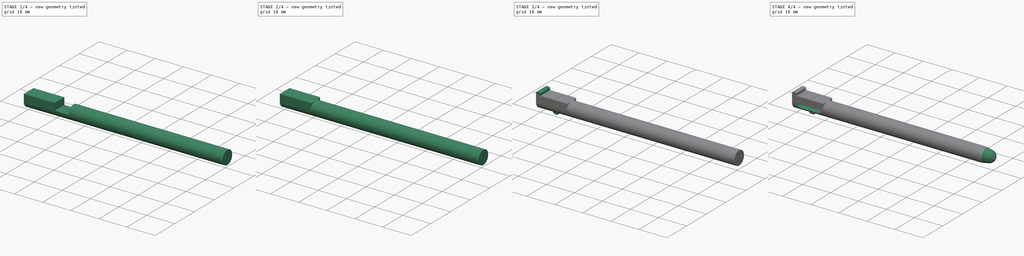
[diagram: build sequence overview — one tinted view per stage of 4, left to right]
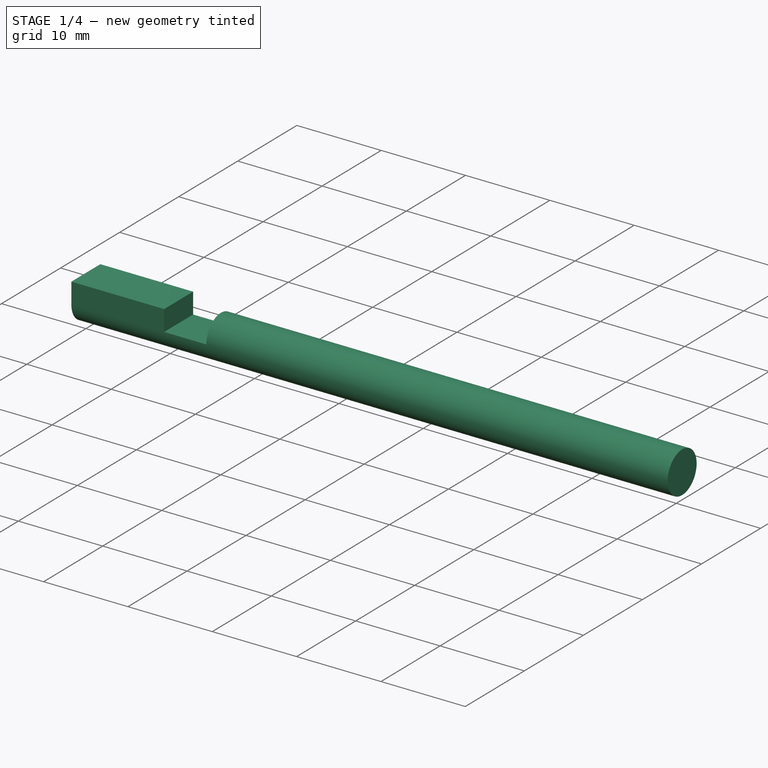
[diagram: stage 1 of 4 — iso view after this stage's code; geometry added in this stage tinted green]
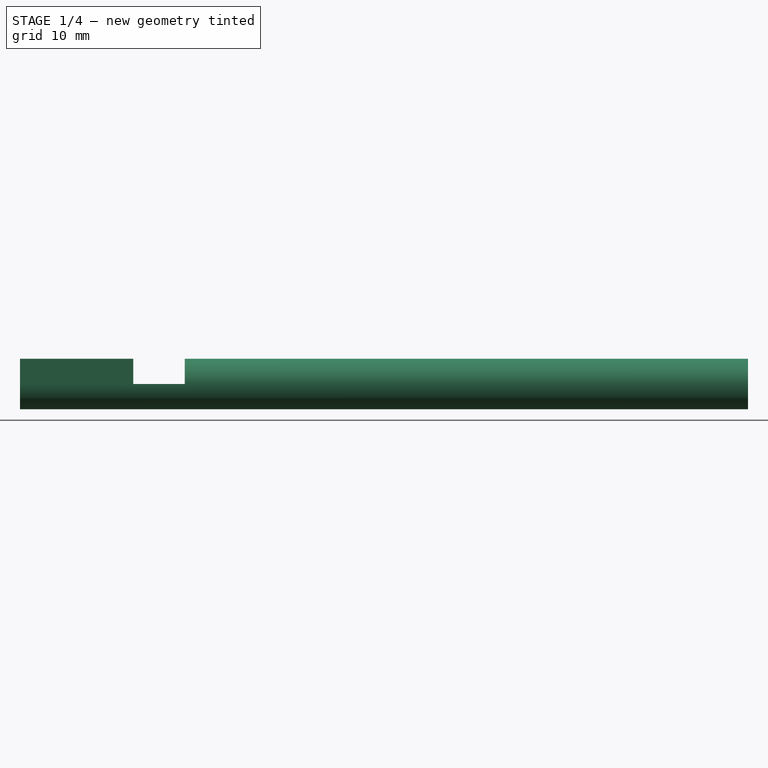
[diagram: stage 1 of 4 — front view after this stage's code; geometry added in this stage tinted green]
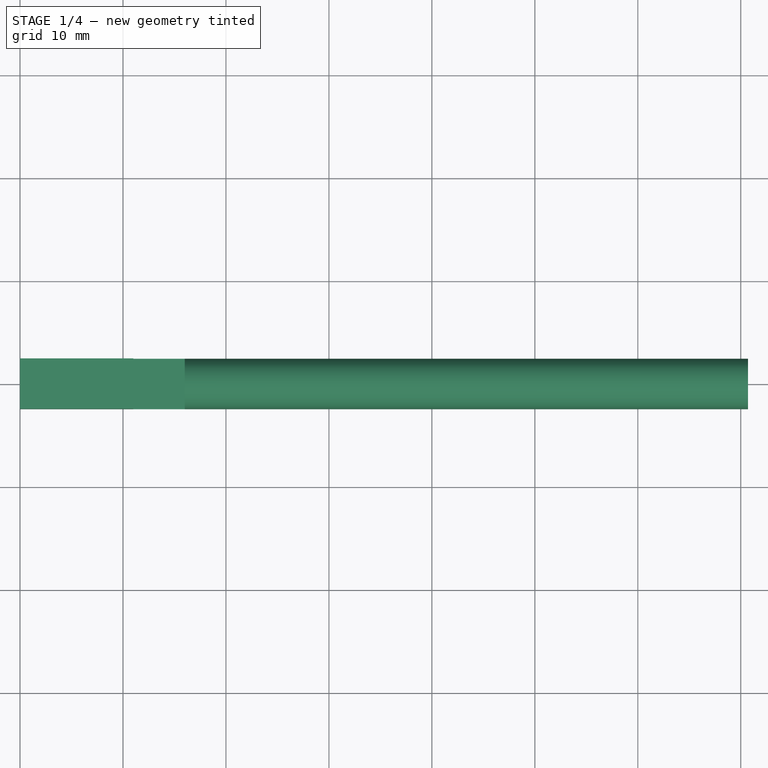
[diagram: stage 1 of 4 — top view after this stage's code; geometry added in this stage tinted green]
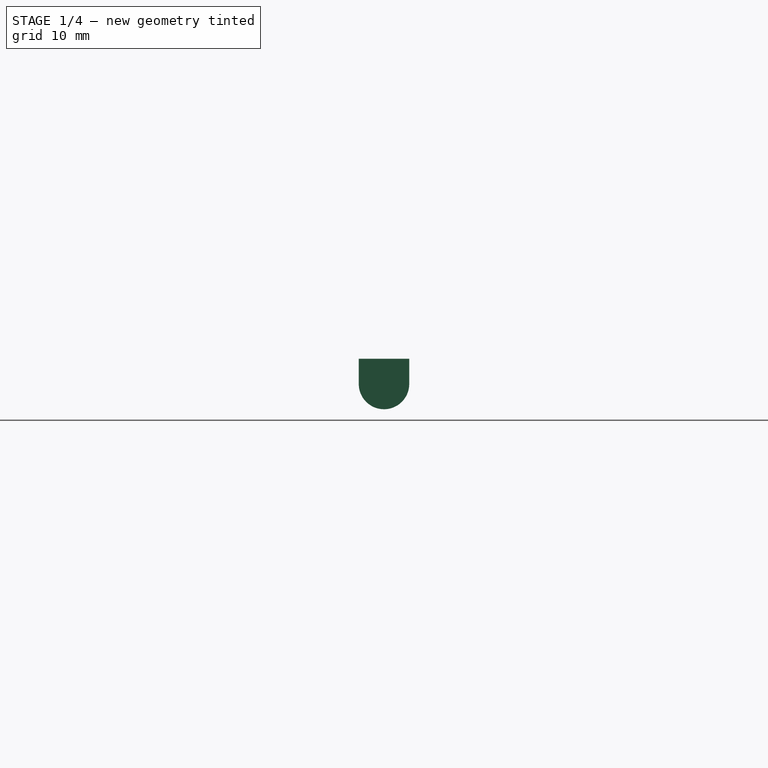
[diagram: stage 1 of 4 — right view after this stage's code; geometry added in this stage tinted green]
FCSTD DOCUMENT  (FreeCAD 1.0R39109 (Git))
Label: 3DS Stylus
License: Creative Commons Attribution-NonCommercial-ShareAlike
LicenseURL: http://creativecommons.org/licenses/by-nc-sa/4.0/
objects: Sketcher::SketchObject×11, PartDesign::Pad×5, PartDesign::Pocket×5, PartDesign::Groove×1, PartDesign::Body×1
note: 56 computed .brp shape members not serialized (recipe doc carries the construction recipe); baked Part::Feature solids carry a one-line shape summary decoded from their .brp

FEATURE [Sketcher::SketchObject] Sketch009
  ArcFitTolerance = 0
  AttachmentSupport = -> [YZ_Plane001]
  FullyConstrained = true
  MakeInternals = false
  MapMode = 5
  Placement = pos=(0,0,0) rot=(0.57735,0.57735,0.57735;2.0944rad)
  sketch-geometry (1):
    g0: Circle CenterX=0 CenterY=0 CenterZ=0 NormalX=0 NormalY=0 NormalZ=1 AngleXU=0 Radius=2.45
  constraints (2):
    c: Coincident(g0,g-1)
    c: Diameter(g0) = 4.9
FEATURE [PartDesign::Pad] Pad005
  Direction = (1,0,0)
  Length = 70.7
  Length2 = 10
  Placement = pos=(0,0,0) rot=(0.57735,0.57735,0.57735;2.0944rad)
  Profile = -> Sketch009
  ReferenceAxis = -> Sketch009 [N_Axis]
  Suppressed = false
  Type = 0
FEATURE [Sketcher::SketchObject] Sketch010
  ArcFitTolerance = 0
  AttachmentSupport = -> [XY_Plane001]
  ExternalGeometry = -> [Pad005]
  FullyConstrained = true
  MakeInternals = false
  MapMode = 5
  sketch-geometry (4):
    g0: LineSegment StartX=11 StartY=-2.45 StartZ=0 EndX=0 EndY=-2.45 EndZ=0
    g1: LineSegment StartX=0 StartY=-2.45 StartZ=0 EndX=6e-16 EndY=2.45 EndZ=0
    g2: LineSegment StartX=6e-16 StartY=2.45 StartZ=0 EndX=11 EndY=2.45 EndZ=0
    g3: LineSegment StartX=11 StartY=2.45 StartZ=0 EndX=11 EndY=-2.45 EndZ=0
  constraints (10):
    c: Coincident(g0,g1)
    c: Horizontal(g0)
    c: Coincident(g0,g-3)
    c: Horizontal(g2)
    c: Coincident(g3,g2)
    c: Vertical(g3)
    c: Distance(g2) = 11
    c: Coincident(g3,g0)
    c: Coincident(g1,g2)
    c: Coincident(g1,g-3)
FEATURE [PartDesign::Pad] Pad006
  BaseFeature = -> Pad005
  Direction = (0,0,1)
  Length = 2.45
  Length2 = 10
  Placement = pos=(0,0,0) rot=(0.57735,0.57735,0.57735;2.0944rad)
  Profile = -> Sketch010
  ReferenceAxis = -> Sketch010 [N_Axis]
  Refine = true
  Suppressed = false
  Type = 0
FEATURE [Sketcher::SketchObject] Sketch011
  ArcFitTolerance = 1e-06
  AttachmentSupport = -> [Pad006]
  ExternalGeometry = -> [Pad006]
  FullyConstrained = true
  MakeInternals = false
  MapMode = 5
  Placement = pos=(-5e-16,-2.45,3e-16) rot=(0.57735,0.57735,-0.57735;2.0944rad)
  sketch-geometry (3):
    g0: LineSegment StartX=-2.45 StartY=11 StartZ=0 EndX=-2.2 EndY=11 EndZ=0
    g1: LineSegment StartX=-2.45 StartY=11 StartZ=0 EndX=-2.45 EndY=10.75 EndZ=0
    g2: ArcOfCircle CenterX=-2.2 CenterY=10.75 CenterZ=0 NormalX=0 NormalY=0 NormalZ=1 AngleXU=0 Radius=0.25 StartAngle=1.5708 EndAngle=3.14159
  constraints (7):
    c: Coincident(g0,g-3)
    c: PointOnObject(g0,g-3)
    c: Coincident(g1,g0)
    c: Vertical(g1)
    c: Tangent(g2,g0) = 1.5708
    c: Tangent(g2,g1) = -1.5708
    c: Radius(g2) = 0.25
FEATURE [Sketcher::SketchObject] Sketch012
  ArcFitTolerance = 1e-06
  AttachmentSupport = -> [Pad006]
  FullyConstrained = true
  MakeInternals = false
  MapMode = 5
  Placement = pos=(-3e-16,3e-16,2.45) rot=(0,0,-1;1.5708rad)
  sketch-geometry (8):
    g0: ArcOfCircle CenterX=-2.2 CenterY=10.75 CenterZ=0 NormalX=0 NormalY=0 NormalZ=1 AngleXU=0 Radius=0.25 StartAngle=1.5708 EndAngle=3.14159
    g1: LineSegment StartX=-2.2 StartY=11 StartZ=0 EndX=-3.45 EndY=11 EndZ=0
    g2: LineSegment StartX=-3.45 StartY=11 StartZ=0 EndX=-3.45 EndY=10.75 EndZ=0
    g3: LineSegment StartX=-3.45 StartY=10.75 StartZ=0 EndX=-2.45 EndY=10.75 EndZ=0
    g4: LineSegment StartX=2.2 StartY=11 StartZ=0 EndX=3.45 EndY=11 EndZ=0
    g5: LineSegment StartX=3.45 StartY=11 StartZ=0 EndX=3.45 EndY=10.75 EndZ=0
    g6: LineSegment StartX=3.45 StartY=10.75 StartZ=0 EndX=2.45 EndY=10.75 EndZ=0
    g7: ArcOfCircle CenterX=2.2 CenterY=10.75 CenterZ=0 NormalX=0 NormalY=0 NormalZ=1 AngleXU=0 Radius=0.25 StartAngle=1.43582e-06 EndAngle=1.5708
  constraints (21):
    c: Tangent(g0,g1) = -1.5708
    c: Coincident(g1,g2)
    c: Coincident(g2,g3)
    c: PointOnObject(g-3,g1)
    c: Horizontal(g1)
    c: Vertical(g2)
    c: Horizontal(g3)
    c: Tangent(g0,g-3) = -1.5708
    c: Horizontal(g4)
    c: Coincident(g4,g5)
    c: Vertical(g5)
    c: Coincident(g5,g6)
    c: Coincident(g6,g-4)
    c: Horizontal(g6)
    c: PointOnObject(g-4,g4)
    c: Coincident(g7,g6)
    c: Tangent(g7,g4) = 1.5708
    c: Tangent(g-4,g7)
    c: Equal(g6,g3)
    c: Distance(g3) = 1
    c: Coincident(g0,g3)
FEATURE [Sketcher::SketchObject] Sketch013
  ArcFitTolerance = 1e-06
  AttachmentSupport = -> [Pad006]
  ExternalGeometry = -> [Pad006]
  FullyConstrained = true
  MakeInternals = false
  MapMode = 5
  Placement = pos=(11,0,3.7e-15) rot=(0.57735,0.57735,0.57735;2.0944rad)
  sketch-geometry (2):
    g0: ArcOfCircle CenterX=0 CenterY=0 CenterZ=0 NormalX=0 NormalY=0 NormalZ=1 AngleXU=0 Radius=2.45 StartAngle=4.9e-15 EndAngle=3.14159
    g1: LineSegment StartX=-2.45 StartY=1.2e-14 StartZ=0 EndX=2.45 EndY=1.2e-14 EndZ=0
  constraints (6):
    c: Coincident(g0,g-1)
    c: PointOnObject(g0,g-3)
    c: Coincident(g1,g0)
    c: Coincident(g1,g0)
    c: Horizontal(g1)
    c: Perpendicular(g-3,g1)
FEATURE [PartDesign::Pocket] Pocket003
  BaseFeature = -> Pad006
  Direction = (-1,0,0)
  Length = 5
  Length2 = 5
  Placement = pos=(0,0,0) rot=(0.57735,0.57735,0.57735;2.0944rad)
  Profile = -> Sketch013
  ReferenceAxis = -> Sketch013 [N_Axis]
  Refine = true
  Reversed = true
  Suppressed = false
  Type = 0
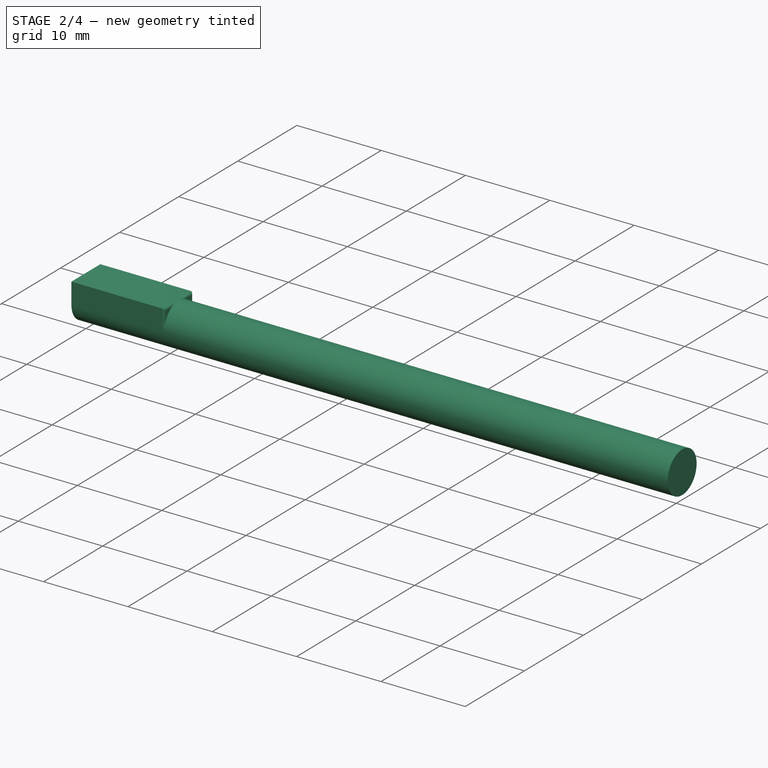
[diagram: stage 2 of 4 — iso view after this stage's code; geometry added in this stage tinted green]
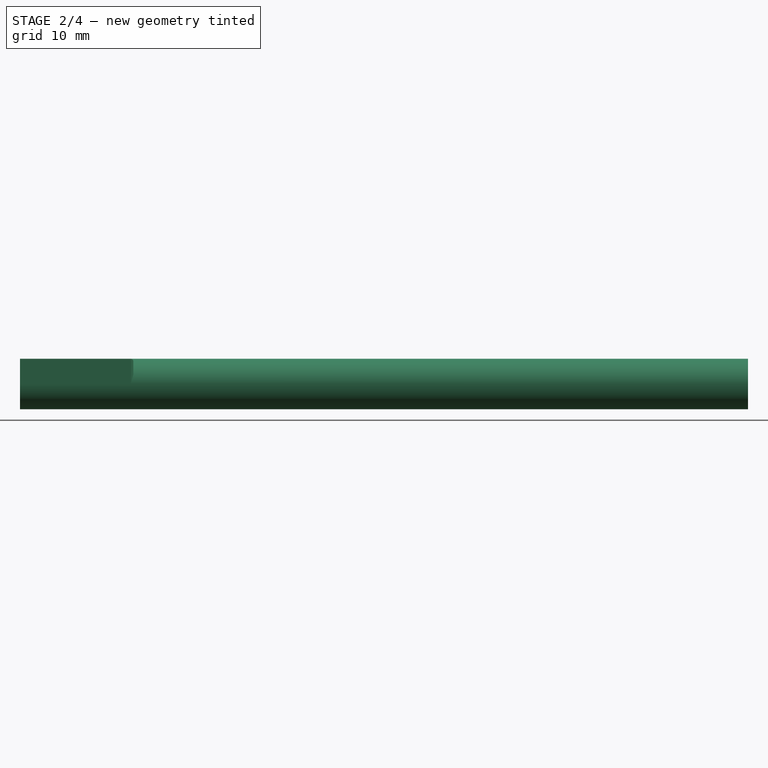
[diagram: stage 2 of 4 — front view after this stage's code; geometry added in this stage tinted green]
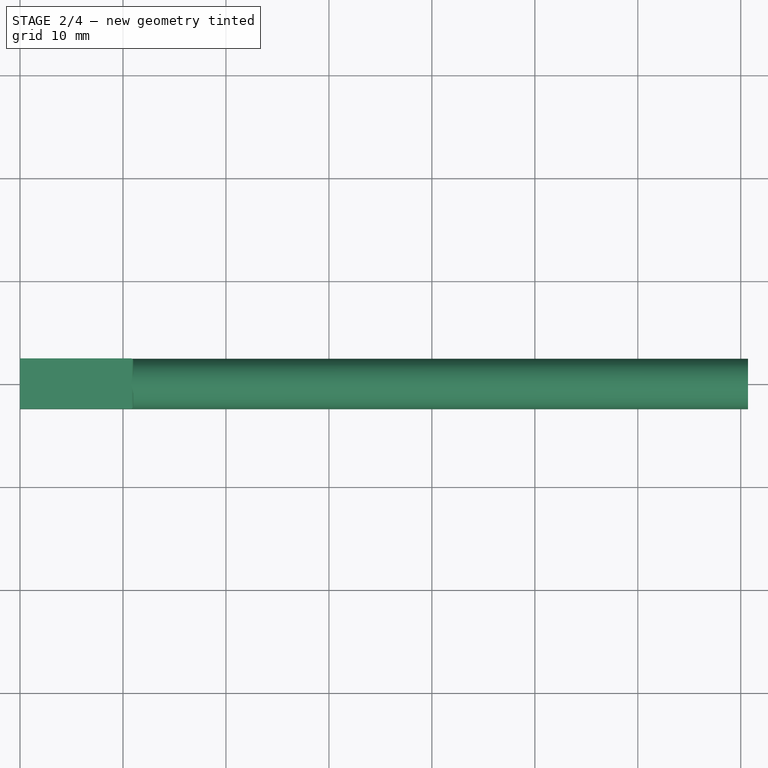
[diagram: stage 2 of 4 — top view after this stage's code; geometry added in this stage tinted green]
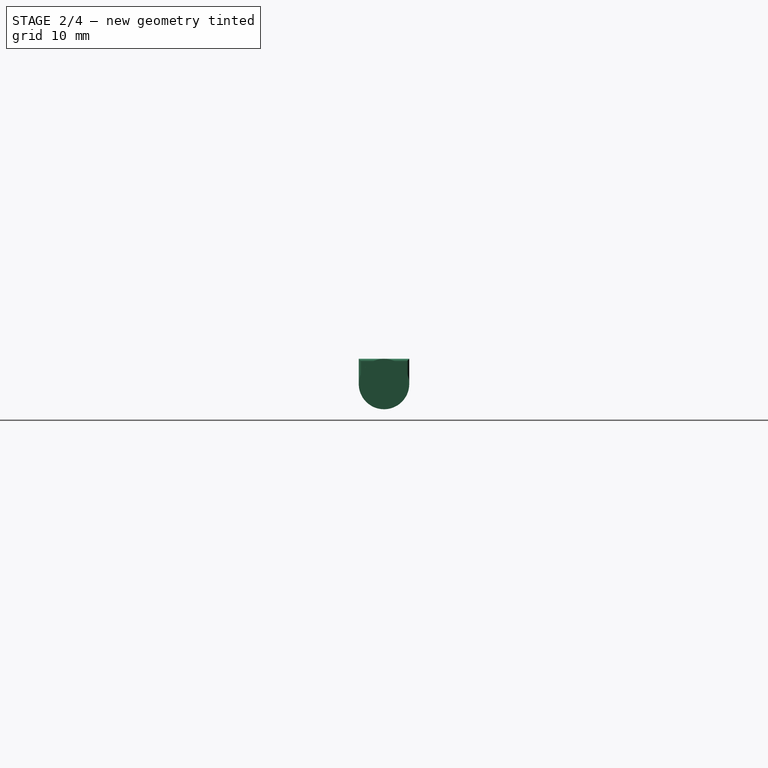
[diagram: stage 2 of 4 — right view after this stage's code; geometry added in this stage tinted green]
FEATURE [PartDesign::Pocket] Pocket
  BaseFeature = -> Pocket003
  Direction = (0,0,-1)
  Length = 0
  Length2 = 5
  Placement = pos=(0,0,0) rot=(0.57735,0.57735,0.57735;2.0944rad)
  Profile = -> Sketch012
  ReferenceAxis = -> Sketch012 [N_Axis]
  Refine = true
  Suppressed = false
  Type = 3
  UpToFace = -> Pocket003 [Face6]
FEATURE [PartDesign::Pocket] Pocket004
  BaseFeature = -> Pocket
  Direction = (0,1,0)
  Length = 5
  Length2 = 5
  Placement = pos=(0,0,0) rot=(0.57735,0.57735,0.57735;2.0944rad)
  Profile = -> Sketch011
  ReferenceAxis = -> Sketch011 [N_Axis]
  Refine = true
  Suppressed = false
  Type = 1
FEATURE [Sketcher::SketchObject] Sketch
  ArcFitTolerance = 1e-06
  AttachmentSupport = -> [Pocket004]
  ExternalGeometry = -> [Pocket004]
  FullyConstrained = true
  MakeInternals = false
  MapMode = 5
  Placement = pos=(16,-1.07e-14,5.3e-15) rot=(0.57735,0.57735,-0.57735;4.18879rad)
  sketch-geometry (1):
    g0: Circle CenterX=0 CenterY=0 CenterZ=0 NormalX=0 NormalY=0 NormalZ=1 AngleXU=0 Radius=2.45
  constraints (2):
    c: Coincident(g0,g-1)
    c: Equal(g0,g-3)
FEATURE [PartDesign::Pad] Pad
  BaseFeature = -> Pocket004
  Direction = (-1,0,0)
  Length = 10
  Length2 = 10
  Offset = 0.25
  Placement = pos=(0,0,0) rot=(0.57735,0.57735,0.57735;2.0944rad)
  Profile = -> Sketch
  ReferenceAxis = -> Sketch [N_Axis]
  Refine = true
  Suppressed = false
  Type = 3
  UpToFace = -> Pocket004 [Face10]
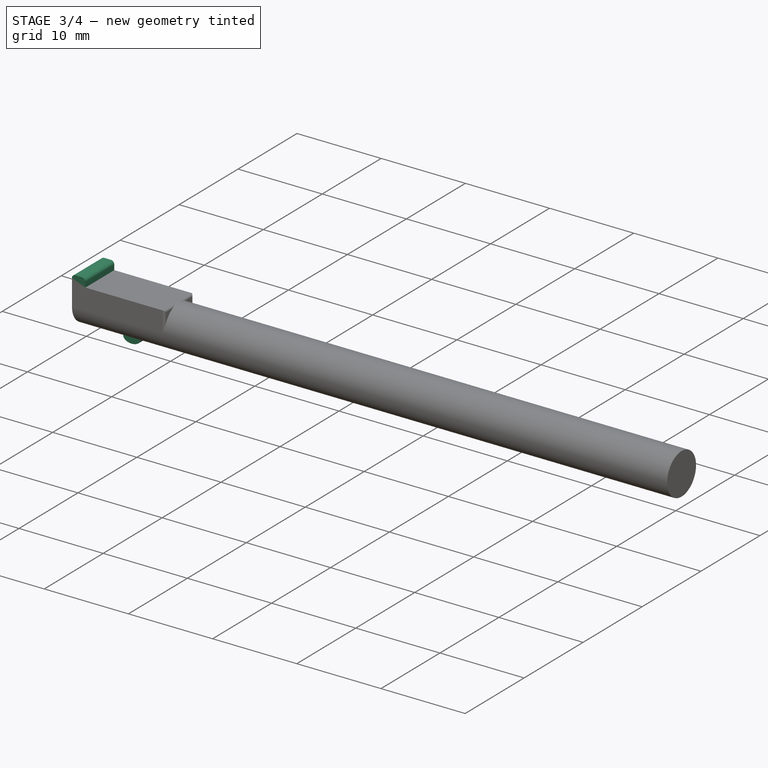
[diagram: stage 3 of 4 — iso view after this stage's code; geometry added in this stage tinted green]
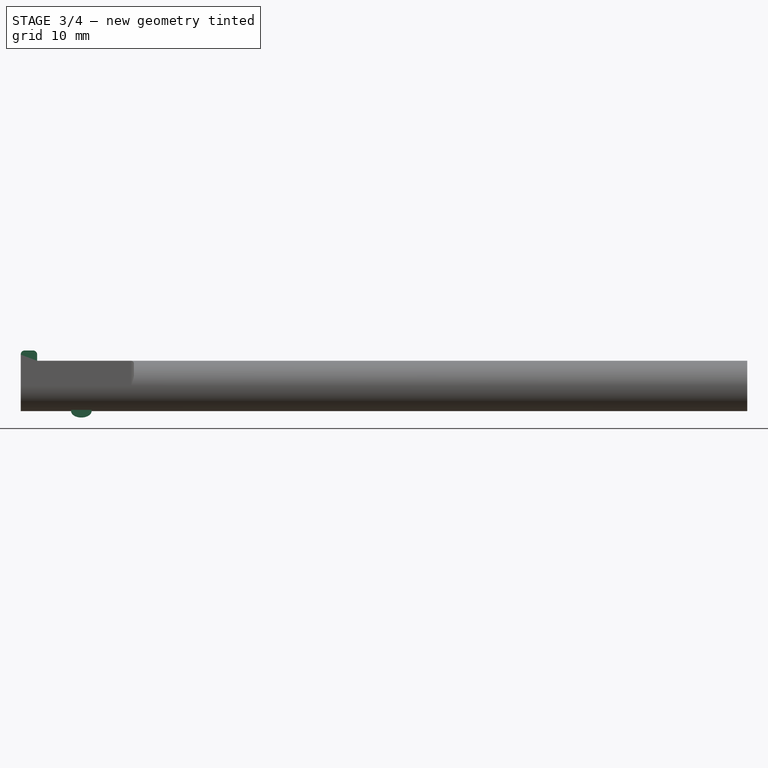
[diagram: stage 3 of 4 — front view after this stage's code; geometry added in this stage tinted green]
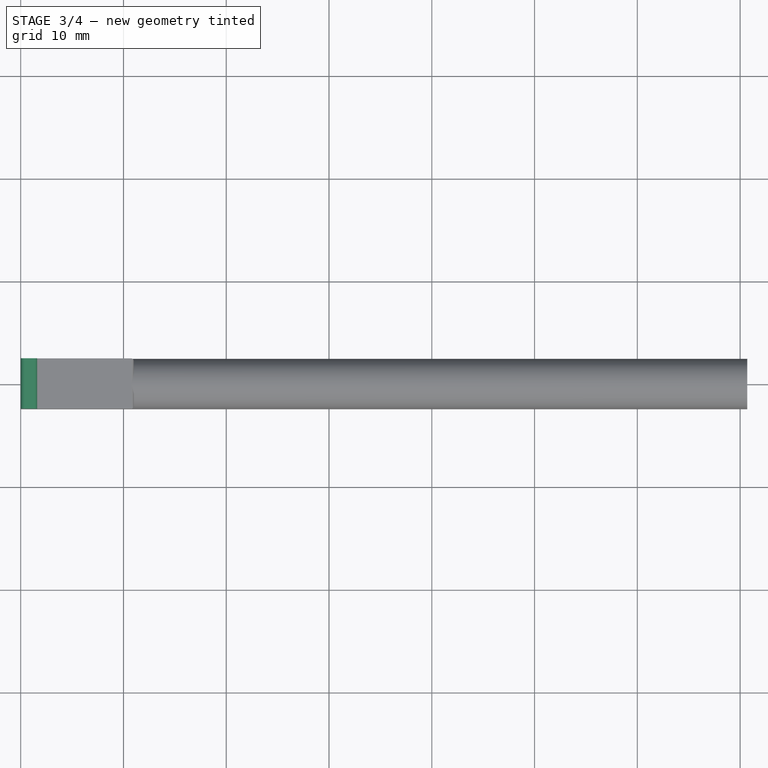
[diagram: stage 3 of 4 — top view after this stage's code; geometry added in this stage tinted green]
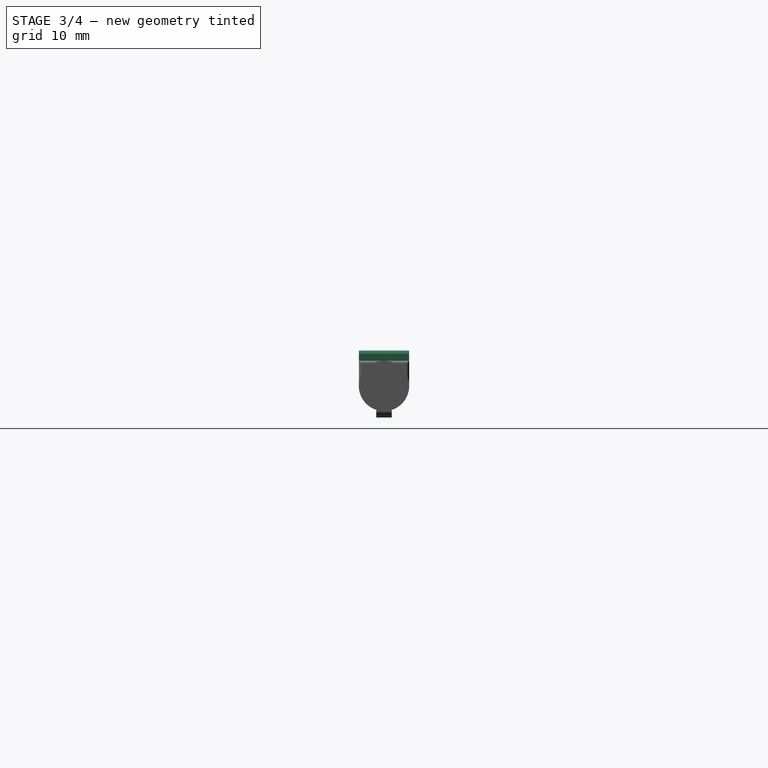
[diagram: stage 3 of 4 — right view after this stage's code; geometry added in this stage tinted green]
FEATURE [Sketcher::SketchObject] Sketch014
  ArcFitTolerance = 1e-06
  AttachmentSupport = -> [Pad]
  ExternalGeometry = -> [Pad]
  FullyConstrained = true
  MakeInternals = false
  MapMode = 5
  Placement = pos=(-5e-16,-2.45,3.5e-15) rot=(0.57735,0.57735,-0.57735;2.0944rad)
  sketch-geometry (8):
    g0: LineSegment StartX=-2.45 StartY=-3.6e-15 StartZ=0 EndX=-2.45 EndY=1.6 EndZ=0
    g1: LineSegment StartX=-2.45 StartY=1.6 StartZ=0 EndX=-3.05 EndY=1.6 EndZ=0
    g2: LineSegment StartX=-3.45 StartY=1.2 StartZ=0 EndX=-3.45 EndY=0.4 EndZ=0
    g3: LineSegment StartX=-3.05 StartY=-3.6e-15 StartZ=0 EndX=-2.45 EndY=-3.6e-15 EndZ=0
    g4: ArcOfCircle CenterX=-3.05 CenterY=1.2 CenterZ=0 NormalX=0 NormalY=0 NormalZ=1 AngleXU=0 Radius=0.4 StartAngle=1.5708 EndAngle=3.14159
    g5: GeomPoint [constr] X=-3.45 Y=1.6 Z=0
    g6: ArcOfCircle CenterX=-3.05 CenterY=0.4 CenterZ=0 NormalX=0 NormalY=0 NormalZ=1 AngleXU=0 Radius=0.4 StartAngle=3.14159 EndAngle=4.71239
    g7: GeomPoint [constr] X=-3.45 Y=0 Z=0
  constraints (19):
    c: Coincident(g0,g-3)
    c: PointOnObject(g0,g-3)
    c: Coincident(g1,g0)
    c: Horizontal(g1)
    c: PointOnObject(g7,g-1)
    c: Vertical(g2)
    c: Coincident(g3,g0)
    c: PointOnObject(g5,g2)
    c: PointOnObject(g5,g1)
    c: Tangent(g2,g4) = -1.5708
    c: Tangent(g1,g4) = -1.5708
    c: PointOnObject(g7,g2)
    c: PointOnObject(g7,g3)
    c: Tangent(g2,g6) = -1.5708
    c: Tangent(g3,g6) = -1.5708
    c: Equal(g4,g6)
    c: Distance(g2) = 0.8
    c: Distance(g3) = 0.6
    c: Radius(g4) = 0.4
FEATURE [PartDesign::Pad] Pad007
  BaseFeature = -> Pad
  Direction = (0,-1,1.3e-15)
  Length = 10
  Length2 = 10
  Placement = pos=(0,0,0) rot=(0.57735,0.57735,0.57735;2.0944rad)
  Profile = -> Sketch014
  ReferenceAxis = -> Sketch014 [N_Axis]
  Refine = true
  Suppressed = false
  Type = 3
  UpToFace = -> Pad [Face1]
FEATURE [Sketcher::SketchObject] Sketch015
  ArcFitTolerance = 1e-06
  AttachmentSupport = -> [XZ_Plane001]
  ExternalGeometry = -> [Pad007]
  FullyConstrained = true
  MakeInternals = false
  MapMode = 5
  Placement = pos=(0,0,0) rot=(1,0,0;1.5708rad)
  sketch-geometry (9):
    g0: Ellipse CenterX=5.9 CenterY=-2.45 CenterZ=0 NormalX=0 NormalY=0 NormalZ=1 MajorRadius=1 MinorRadius=0.625 AngleXU=-3.14159
    g1: LineSegment [constr] StartX=4.9 StartY=-2.45 StartZ=0 EndX=6.9 EndY=-2.45 EndZ=0
    g2: LineSegment [constr] StartX=5.9 StartY=-3.075 StartZ=0 EndX=5.9 EndY=-1.825 EndZ=0
    g3: GeomPoint [constr] X=5.11938 Y=-2.45 Z=0
    g4: GeomPoint [constr] X=6.68062 Y=-2.45 Z=0
    g5: LineSegment [constr] StartX=5.3e-15 StartY=-2.45 StartZ=0 EndX=6.9 EndY=-2.45 EndZ=0
    g6: LineSegment [constr] StartX=6.9 StartY=-2.45 StartZ=0 EndX=6.9 EndY=0 EndZ=0
    g7: LineSegment [constr] StartX=6.9 StartY=0 StartZ=0 EndX=5.3e-15 EndY=0 EndZ=0
    g8: LineSegment [constr] StartX=5.3e-15 StartY=0 StartZ=0 EndX=5.3e-15 EndY=-2.45 EndZ=0
  constraints (16):
    c: InternalAlignment(g1-g4 -> g0) x4
    c: Distance(g2) = 1.25
    c: Distance(g1) = 2
    c: Coincident(g5,g6)
    c: Coincident(g6,g7)
    c: Coincident(g7,g8)
    c: Coincident(g8,g5)
    c: Horizontal(g5)
    c: Horizontal(g7)
    c: Vertical(g6)
    c: Vertical(g8)
    c: Coincident(g5,g-3)
    c: PointOnObject(g6,g-1)
    c: Distance(g7) = 6.9
    c: PointOnObject(g1,g5)
    c: Coincident(g1,g5)
FEATURE [PartDesign::Pad] Pad008
  BaseFeature = -> Pad007
  Direction = (0,-1,2e-16)
  Length = 0.75
  Length2 = 0.75
  Placement = pos=(0,0,0) rot=(0.57735,0.57735,0.57735;2.0944rad)
  Profile = -> Sketch015
  ReferenceAxis = -> Sketch015 [N_Axis]
  Refine = true
  Suppressed = false
  Type = 4
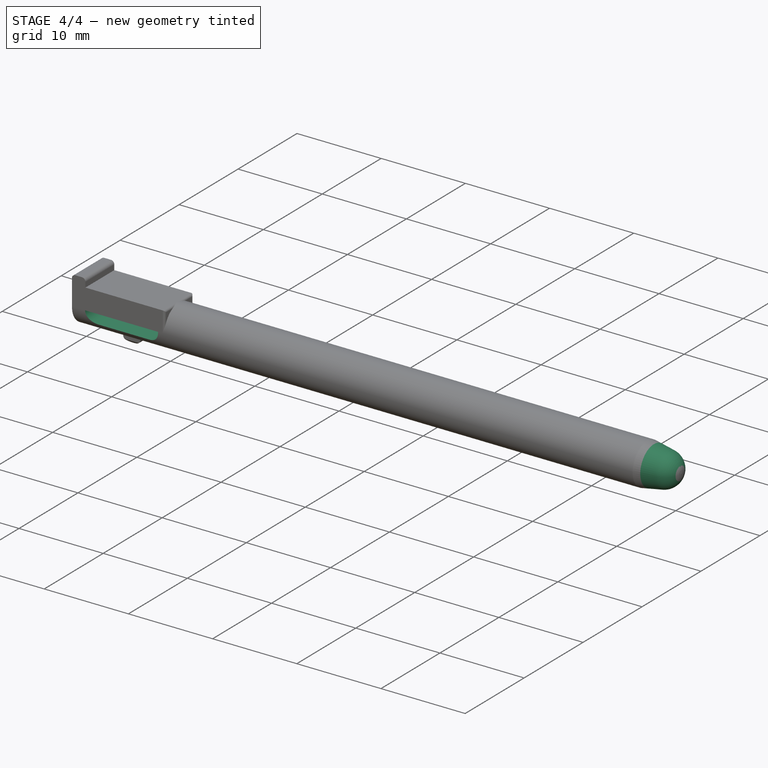
[diagram: stage 4 of 4 — iso view after this stage's code; geometry added in this stage tinted green]
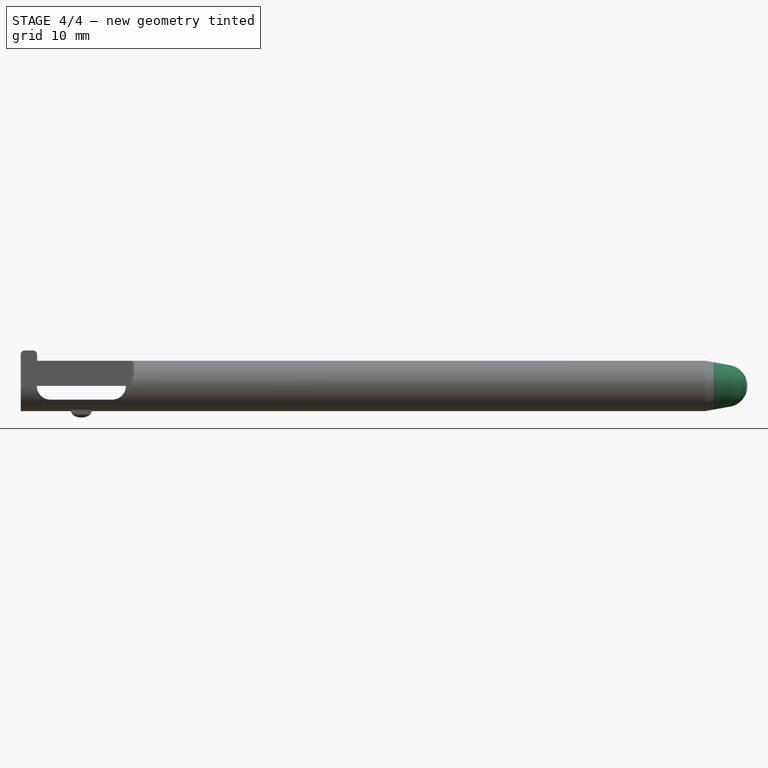
[diagram: stage 4 of 4 — front view after this stage's code; geometry added in this stage tinted green]
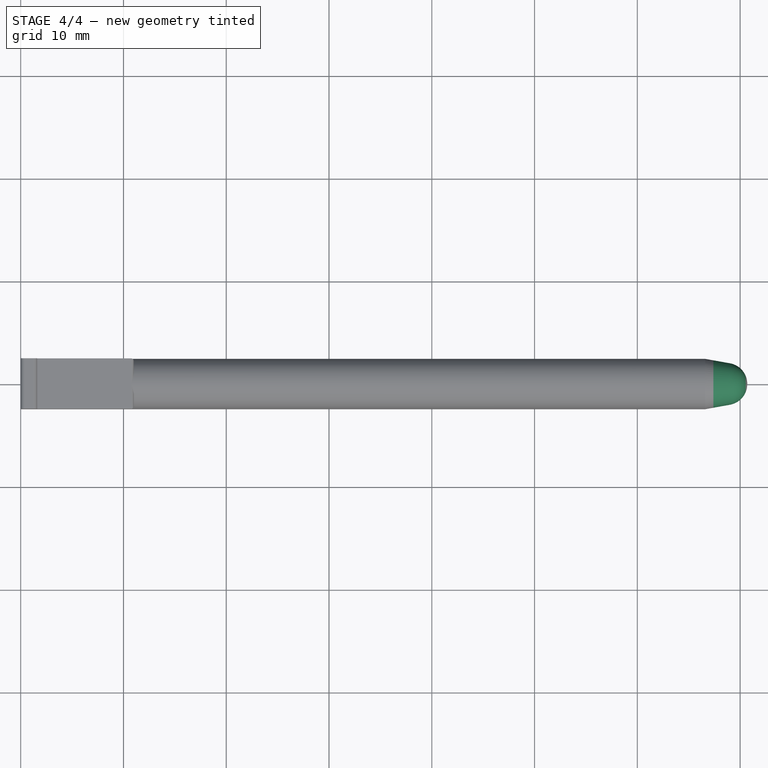
[diagram: stage 4 of 4 — top view after this stage's code; geometry added in this stage tinted green]
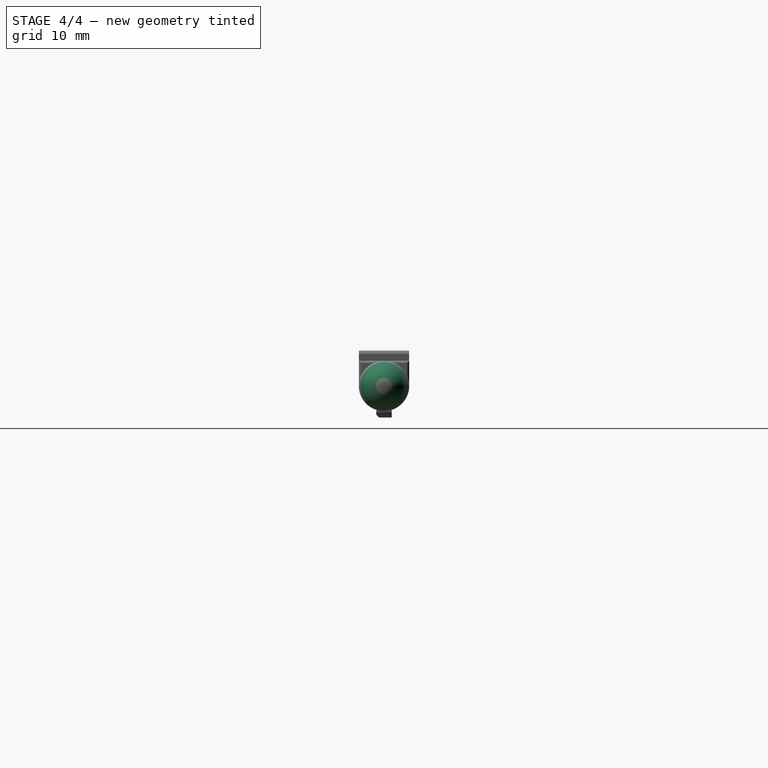
[diagram: stage 4 of 4 — right view after this stage's code; geometry added in this stage tinted green]
FEATURE [Sketcher::SketchObject] Sketch016
  ArcFitTolerance = 1e-06
  AttachmentSupport = -> [Pad008]
  ExternalGeometry = -> [Pad008]
  FullyConstrained = true
  MakeInternals = false
  MapMode = 5
  Placement = pos=(3.1e-15,-2.45,1.1e-15) rot=(0.57735,0.57735,-0.57735;2.0944rad)
  sketch-geometry (8):
    g0: ArcOfCircle [constr] CenterX=0 CenterY=2.9 CenterZ=0 NormalX=0 NormalY=0 NormalZ=1 AngleXU=0 Radius=1.33238 StartAngle=3.14159 EndAngle=6.28319
    g1: ArcOfCircle [constr] CenterX=-1e-16 CenterY=8.9 CenterZ=0 NormalX=0 NormalY=0 NormalZ=1 AngleXU=0 Radius=1.33238 StartAngle=3e-16 EndAngle=3.14159
    g2: LineSegment [constr] StartX=-1.33238 StartY=2.9 StartZ=0 EndX=-1.33238 EndY=8.9 EndZ=0
    g3: LineSegment StartX=1.33238 StartY=2.9 StartZ=0 EndX=1.33238 EndY=8.9 EndZ=0
    g4: LineSegment [constr] StartX=1.33238 StartY=5.9 StartZ=0 EndX=2.33238 EndY=5.9 EndZ=0
    g5: LineSegment StartX=4.3e-15 StartY=10.2324 StartZ=0 EndX=4.3e-15 EndY=1.56762 EndZ=0
    g6: ArcOfCircle CenterX=3e-16 CenterY=8.9 CenterZ=0 NormalX=0 NormalY=0 NormalZ=1 AngleXU=0 Radius=1.33238 StartAngle=0 EndAngle=1.5708
    g7: ArcOfCircle CenterX=-6.29e-14 CenterY=2.9 CenterZ=0 NormalX=0 NormalY=0 NormalZ=1 AngleXU=0 Radius=1.33238 StartAngle=4.71239 EndAngle=6.28319
  constraints (20):
    c: Tangent(g0,g2) = 1.5708
    c: Tangent(g0,g3) = -1.5708
    c: Tangent(g1,g2) = 1.5708
    c: Tangent(g1,g3) = -1.5708
    c: Equal(g0,g1)
    c: Vertical(g3)
    c: PointOnObject(g0,g-2)
    c: Distance(g3) = 6
    c: Symmetric(g3,g3,g4)
    c: Symmetric(g-3,g-3,g4)
    c: Horizontal(g4)
    c: Distance(g4) = 1
    c: PointOnObject(g5,g1)
    c: PointOnObject(g5,g0)
    c: Vertical(g5)
    c: Perpendicular(g1,g5)
    c: Coincident(g6,g5)
    c: Tangent(g6,g1) = -1.5708
    c: Tangent(g7,g0) = -1.5708
    c: Coincident(g7,g5)
FEATURE [PartDesign::Pocket] Pocket005
  BaseFeature = -> Pad008
  Direction = (-1.3e-15,1,0)
  Length = 5
  Length2 = 5
  Placement = pos=(0,0,0) rot=(0.57735,0.57735,0.57735;2.0944rad)
  Profile = -> Sketch016
  ReferenceAxis = -> Sketch016 [N_Axis]
  Refine = true
  Suppressed = false
  Type = 1
FEATURE [Sketcher::SketchObject] Sketch017
  ArcFitTolerance = 1e-06
  AttachmentSupport = -> [XZ_Plane001]
  ExternalGeometry = -> [Pocket005]
  FullyConstrained = true
  MakeInternals = false
  MapMode = 5
  Placement = pos=(0,0,0) rot=(1,0,0;1.5708rad)
  sketch-geometry (6):
    g0: ArcOfCircle CenterX=68.65 CenterY=-2.47434e-07 CenterZ=0 NormalX=0 NormalY=0 NormalZ=1 AngleXU=0 Radius=2.05 StartAngle=1.20699e-07 EndAngle=1.39348
    g1: LineSegment StartX=70.7 StartY=7.08e-14 StartZ=0 EndX=72.7 EndY=7.08e-14 EndZ=0
    g2: LineSegment StartX=72.7 StartY=7.08e-14 StartZ=0 EndX=72.7 EndY=2.45 EndZ=0
    g3: LineSegment StartX=66.6 StartY=2.45 StartZ=0 EndX=69.0116 EndY=2.01786 EndZ=0
    g4: LineSegment StartX=66.6 StartY=2.45 StartZ=0 EndX=70.7 EndY=2.45 EndZ=0
    g5: LineSegment StartX=70.7 StartY=2.45 StartZ=0 EndX=72.7 EndY=2.45 EndZ=0
  constraints (16):
    c: Symmetric(g-3,g-3,g0)
    c: Vertical(g2)
    c: Coincident(g2,g1)
    c: Horizontal(g1)
    c: Tangent(g-3,g0)
    c: Tangent(g3,g0) = 1.5708
    c: Coincident(g5,g4)
    c: Coincident(g5,g2)
    c: Coincident(g4,g-3)
    c: Horizontal(g4)
    c: Horizontal(g5)
    c: Distance(g4) = 4.1
    c: Diameter(g0) = 4.1
    c: Coincident(g4,g3)
    c: Distance(g1) = 2
    c: Coincident(g0,g1)
FEATURE [PartDesign::Groove] Groove
  Angle = 360
  Angle2 = 60
  Axis = (1,0,0)
  Base = (0,0,0)
  BaseFeature = -> Pocket005
  Placement = pos=(0,0,0) rot=(0.57735,0.57735,0.57735;2.0944rad)
  Profile = -> Sketch017
  ReferenceAxis = -> Sketch017 [H_Axis]
  Refine = true
  Reversed = true
  Suppressed = false
  Type = 0
FEATURE [Sketcher::SketchObject] Sketch018
  ArcFitTolerance = 1e-06
  AttachmentSupport = -> [YZ_Plane001]
  ExternalGeometry = -> [Groove]
  FullyConstrained = true
  MakeInternals = false
  MapMode = 5
  Placement = pos=(0,0,0) rot=(0.57735,0.57735,0.57735;2.0944rad)
  sketch-geometry (6):
    g0: LineSegment [constr] StartX=0.75 StartY=-3.075 StartZ=0 EndX=-0.75 EndY=-3.075 EndZ=0
    g1: LineSegment StartX=-0.477941 StartY=-3.075 StartZ=0 EndX=-0.75 EndY=-2.78177 EndZ=0
    g2: LineSegment StartX=-0.75 StartY=-2.78177 StartZ=0 EndX=-1.65401 EndY=-1.80742 EndZ=0
    g3: LineSegment StartX=-1.65401 StartY=-1.80742 StartZ=0 EndX=-1.92607 EndY=-1.51419 EndZ=0
    g4: LineSegment StartX=-1.92607 StartY=-1.51419 StartZ=0 EndX=-1.92607 EndY=-3.075 EndZ=0
    g5: LineSegment StartX=-1.92607 StartY=-3.075 StartZ=0 EndX=-0.477941 EndY=-3.075 EndZ=0
  constraints (17):
    c: Coincident(g0,g-5)
    c: Coincident(g0,g-4)
    c: PointOnObject(g1,g0)
    c: PointOnObject(g1,g-4)
    c: Coincident(g2,g1)
    c: PointOnObject(g2,g-3)
    c: Coincident(g3,g2)
    c: PointOnObject(g3,g-3)
    c: Coincident(g4,g3)
    c: Vertical(g4)
    c: Coincident(g5,g4)
    c: Coincident(g5,g1)
    c: Horizontal(g5)
    c: Distance(g1) = 0.4
    c: Distance(g3) = 0.4
    c: Parallel(g1,g2)
    c: Parallel(g2,g3)
FEATURE [PartDesign::Pocket] Pocket006
  BaseFeature = -> Groove
  Direction = (-1,0,0)
  Length = 5
  Length2 = 5
  Placement = pos=(0,0,0) rot=(0.57735,0.57735,0.57735;2.0944rad)
  Profile = -> Sketch018
  ReferenceAxis = -> Sketch018 [N_Axis]
  Refine = true
  Reversed = true
  Suppressed = false
  Type = 1
FEATURE [PartDesign::Body] Body001  label="Nintendo 3DS Stylus"
  AllowCompound = false
  Group = -> [Sketch009,Pad005,Sketch010,Pad006,Sketch011,Sketch012,Sketch013,Pocket003,Pocket,Pocket004,Sketch,Pad,Sketch014,Pad007,Sketch015,Pad008,Sketch016,Pocket005,Sketch017,Groove,Sketch018,Pocket006]
  Origin = -> Origin001
  Placement = pos=(0,0,0) rot=(1,0,0;0.822748rad)
  Tip = -> Pocket006
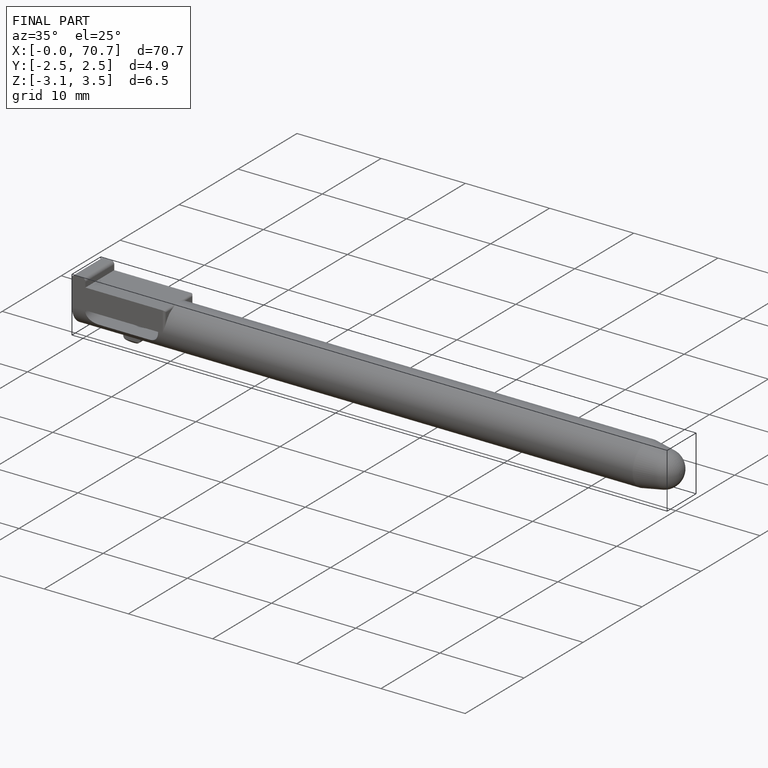
[diagram: finished part — iso view with bounding-box wireframe]
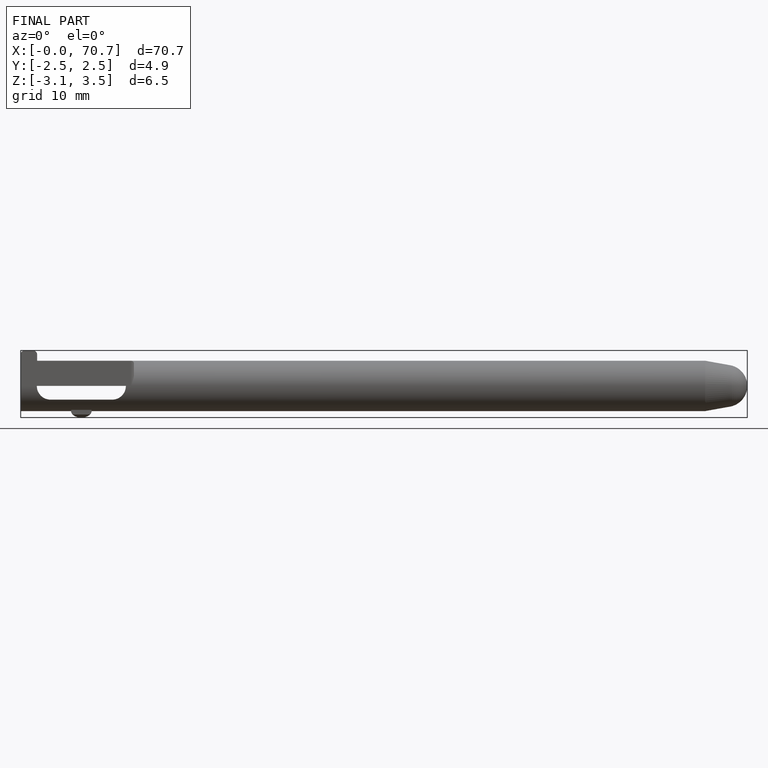
[diagram: finished part — front view with bounding-box wireframe]
